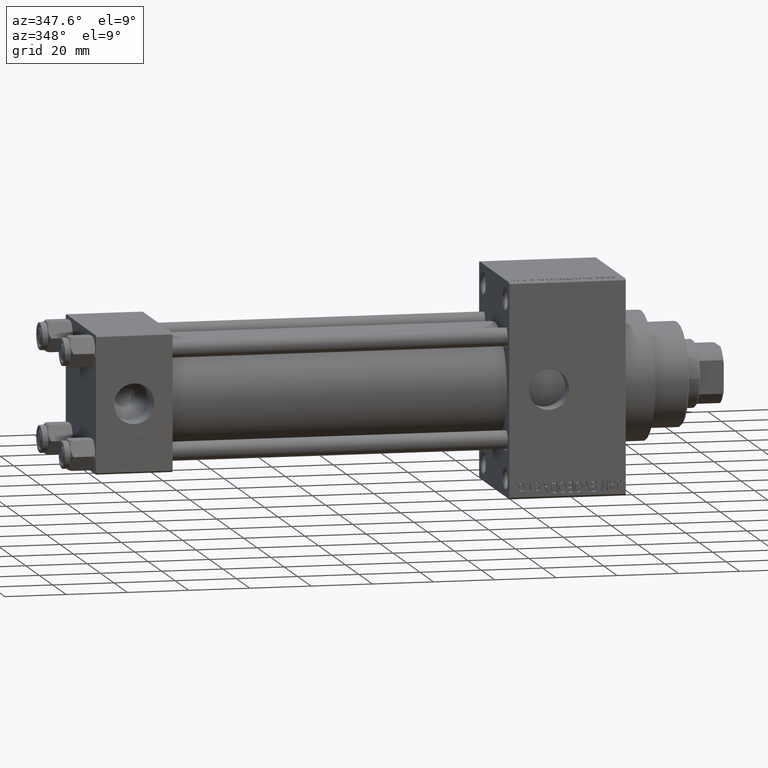
[diagram: clean part render]
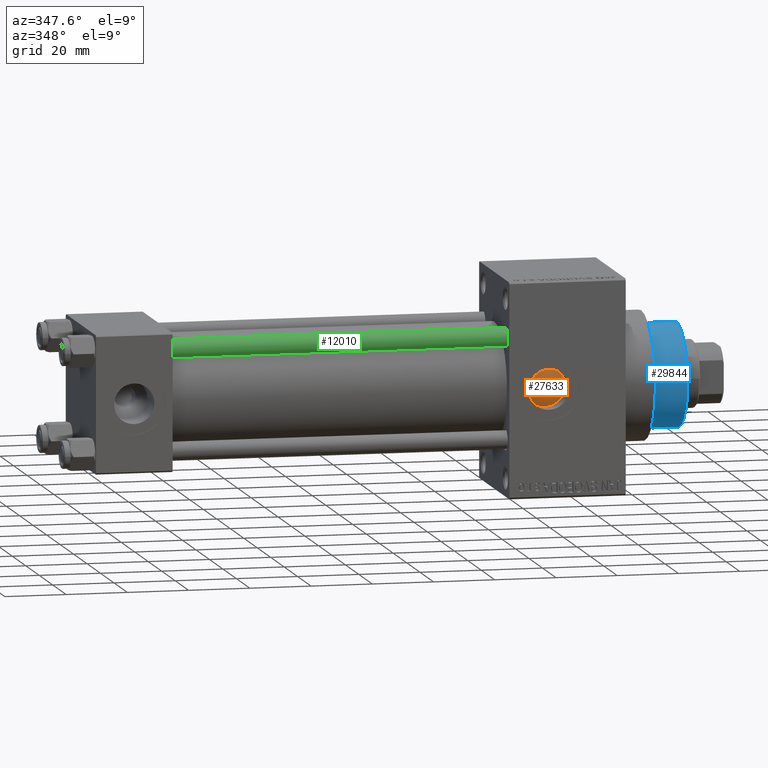
[diagram: same view with three faces highlighted in distinct colors, each labeled with its STEP entity id]
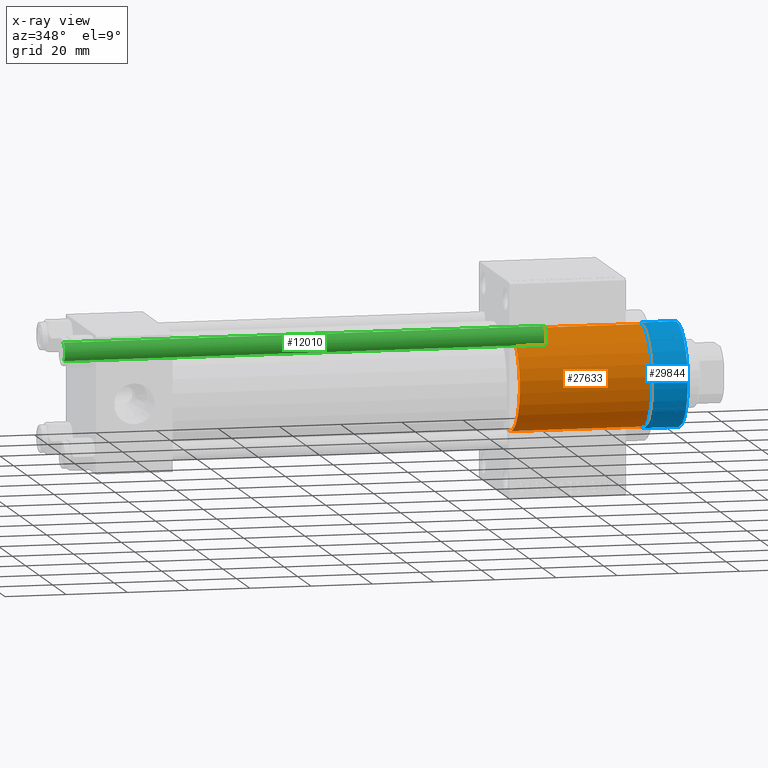
[diagram: x-ray of the same camera — body ghosted, the three highlighted faces saturated]
A machine part, auxiliary view with three faces highlighted in distinct colors.
The next image is the same camera in x-ray (body ghosted, the three faces saturated) — at least one of them is partly hidden behind the body in this view.
Their STEP definitions:

[orange] entity #27633 — the highlighted cylindrical surface (partial cylindrical patch) has radius 16.5 mm, axis along (-1, 0, 0).
#1803 = DIRECTION ( 'NONE',  ( -1.000000000000000000, 0.000000000000000000, 0.000000000000000000 ) ) ;
#4787 = ORIENTED_EDGE ( 'NONE', *, *, #31890, .F. ) ;
#5251 = AXIS2_PLACEMENT_3D ( 'NONE', #45645, #27043, #1803 ) ;
#6428 = ORIENTED_EDGE ( 'NONE', *, *, #8086, .T. ) ;
#6831 = CARTESIAN_POINT ( 'NONE',  ( 16.50000000000000000, 2.020667218593133100E-15, 43.25999999999999801 ) ) ;
#8086 = EDGE_CURVE ( 'NONE', #26972, #17601, #31611, .T. ) ;
#8954 = CYLINDRICAL_SURFACE ( 'NONE', #5251, 16.50000000000000000 ) ;
#10023 = VECTOR ( 'NONE', #35431, 1000.000000000000000 ) ;
#10830 = EDGE_CURVE ( 'NONE', #26972, #16908, #22447, .T. ) ;
#15333 = CARTESIAN_POINT ( 'NONE',  ( 16.50000000000000000, 2.020667218593133100E-15, 43.25999999999999801 ) ) ;
#15641 = AXIS2_PLACEMENT_3D ( 'NONE', #39698, #35885, #40407 ) ;
#16013 = DIRECTION ( 'NONE',  ( 0.000000000000000000, 0.000000000000000000, 1.000000000000000000 ) ) ;
#16908 = VERTEX_POINT ( 'NONE', #45381 ) ;
#17601 = VERTEX_POINT ( 'NONE', #22737 ) ;
#17792 = CARTESIAN_POINT ( 'NONE',  ( -16.50000000000000000, 0.000000000000000000, 43.25999999999999801 ) ) ;
#19307 = EDGE_CURVE ( 'NONE', #17601, #38746, #46212, .T. ) ;
#19585 = DIRECTION ( 'NONE',  ( 1.000000000000000000, 0.000000000000000000, 0.000000000000000000 ) ) ;
#22447 = CIRCLE ( 'NONE', #15641, 16.50000000000000000 ) ;
#22737 = CARTESIAN_POINT ( 'NONE',  ( 16.50000000000000000, 2.020667218593133100E-15, 0.000000000000000000 ) ) ;
#23873 = VECTOR ( 'NONE', #35881, 1000.000000000000000 ) ;
#23933 = FACE_OUTER_BOUND ( 'NONE', #41040, .T. ) ;
#26972 = VERTEX_POINT ( 'NONE', #15333 ) ;
#27043 = DIRECTION ( 'NONE',  ( -0.000000000000000000, -0.000000000000000000, -1.000000000000000000 ) ) ;
#27633 = ADVANCED_FACE ( 'NONE', ( #23933 ), #8954, .T. ) ;
#27911 = AXIS2_PLACEMENT_3D ( 'NONE', #33648, #16013, #19585 ) ;
#28509 = LINE ( 'NONE', #17792, #10023 ) ;
#31611 = LINE ( 'NONE', #6831, #23873 ) ;
#31890 = EDGE_CURVE ( 'NONE', #16908, #38746, #28509, .T. ) ;
#33648 = CARTESIAN_POINT ( 'NONE',  ( 0.000000000000000000, 0.000000000000000000, 0.000000000000000000 ) ) ;
#35431 = DIRECTION ( 'NONE',  ( -0.000000000000000000, -0.000000000000000000, -1.000000000000000000 ) ) ;
#35881 = DIRECTION ( 'NONE',  ( -0.000000000000000000, -0.000000000000000000, -1.000000000000000000 ) ) ;
#35885 = DIRECTION ( 'NONE',  ( 0.000000000000000000, 0.000000000000000000, 1.000000000000000000 ) ) ;
#38746 = VERTEX_POINT ( 'NONE', #43964 ) ;
#39566 = ORIENTED_EDGE ( 'NONE', *, *, #10830, .F. ) ;
#39698 = CARTESIAN_POINT ( 'NONE',  ( 0.000000000000000000, 0.000000000000000000, 43.25999999999999801 ) ) ;
#40407 = DIRECTION ( 'NONE',  ( 1.000000000000000000, 0.000000000000000000, 0.000000000000000000 ) ) ;
#41040 = EDGE_LOOP ( 'NONE', ( #39566, #6428, #43873, #4787 ) ) ;
#43873 = ORIENTED_EDGE ( 'NONE', *, *, #19307, .T. ) ;
#43964 = CARTESIAN_POINT ( 'NONE',  ( -16.50000000000000000, 0.000000000000000000, 0.000000000000000000 ) ) ;
#45381 = CARTESIAN_POINT ( 'NONE',  ( -16.50000000000000000, 0.000000000000000000, 43.25999999999999801 ) ) ;
#45645 = CARTESIAN_POINT ( 'NONE',  ( 0.000000000000000000, 0.000000000000000000, 43.25999999999999801 ) ) ;
#46212 = CIRCLE ( 'NONE', #27911, 16.50000000000000000 ) ;

[blue] entity #29844 — the highlighted cylindrical surface (partial cylindrical patch) has radius 17 mm, axis along (-1, 0, 0).
#1848 = CYLINDRICAL_SURFACE ( 'NONE', #34959, 17.00000000000000000 ) ;
#3148 = VECTOR ( 'NONE', #11007, 1000.000000000000000 ) ;
#4095 = CARTESIAN_POINT ( 'NONE',  ( -17.00000000000000000, 0.000000000000000000, 55.26000000000000512 ) ) ;
#5624 = LINE ( 'NONE', #38017, #26293 ) ;
#8136 = EDGE_CURVE ( 'NONE', #28402, #26431, #42164, .T. ) ;
#10809 = AXIS2_PLACEMENT_3D ( 'NONE', #31139, #24438, #35416 ) ;
#11007 = DIRECTION ( 'NONE',  ( -0.000000000000000000, -0.000000000000000000, -1.000000000000000000 ) ) ;
#12069 = CARTESIAN_POINT ( 'NONE',  ( 17.00000000000000000, 2.081899558550500280E-15, 43.25999999999999801 ) ) ;
#12103 = CARTESIAN_POINT ( 'NONE',  ( 0.000000000000000000, 0.000000000000000000, 55.26000000000000512 ) ) ;
#12350 = CARTESIAN_POINT ( 'NONE',  ( 17.00000000000000000, 2.081899558550500280E-15, 54.76000000000001222 ) ) ;
#12700 = EDGE_CURVE ( 'NONE', #26431, #32752, #5624, .T. ) ;
#13814 = CARTESIAN_POINT ( 'NONE',  ( -17.00000000000000000, 0.000000000000000000, 54.76000000000001222 ) ) ;
#16575 = DIRECTION ( 'NONE',  ( -0.000000000000000000, -0.000000000000000000, -1.000000000000000000 ) ) ;
#17814 = ORIENTED_EDGE ( 'NONE', *, *, #41263, .T. ) ;
#23738 = DIRECTION ( 'NONE',  ( -1.000000000000000000, 0.000000000000000000, 0.000000000000000000 ) ) ;
#24438 = DIRECTION ( 'NONE',  ( 0.000000000000000000, 0.000000000000000000, 1.000000000000000000 ) ) ;
#24575 = ORIENTED_EDGE ( 'NONE', *, *, #8136, .T. ) ;
#26293 = VECTOR ( 'NONE', #16575, 1000.000000000000000 ) ;
#26431 = VERTEX_POINT ( 'NONE', #12350 ) ;
#26780 = CIRCLE ( 'NONE', #10809, 17.00000000000000000 ) ;
#26855 = FACE_OUTER_BOUND ( 'NONE', #28017, .T. ) ;
#28017 = EDGE_LOOP ( 'NONE', ( #24575, #46733, #17814, #42674 ) ) ;
#28402 = VERTEX_POINT ( 'NONE', #13814 ) ;
#29330 = LINE ( 'NONE', #4095, #3148 ) ;
#29844 = ADVANCED_FACE ( 'NONE', ( #26855 ), #1848, .T. ) ;
#31139 = CARTESIAN_POINT ( 'NONE',  ( 0.000000000000000000, 0.000000000000000000, 43.25999999999999801 ) ) ;
#32752 = VERTEX_POINT ( 'NONE', #12069 ) ;
#33035 = AXIS2_PLACEMENT_3D ( 'NONE', #44234, #36351, #36838 ) ;
#34959 = AXIS2_PLACEMENT_3D ( 'NONE', #12103, #45216, #23738 ) ;
#35416 = DIRECTION ( 'NONE',  ( 1.000000000000000000, 0.000000000000000000, 0.000000000000000000 ) ) ;
#36351 = DIRECTION ( 'NONE',  ( 0.000000000000000000, 0.000000000000000000, -1.000000000000000000 ) ) ;
#36838 = DIRECTION ( 'NONE',  ( 1.000000000000000000, 0.000000000000000000, 0.000000000000000000 ) ) ;
#38017 = CARTESIAN_POINT ( 'NONE',  ( 17.00000000000000000, 2.081899558550500280E-15, 55.26000000000000512 ) ) ;
#40281 = VERTEX_POINT ( 'NONE', #44740 ) ;
#41263 = EDGE_CURVE ( 'NONE', #32752, #40281, #26780, .T. ) ;
#42164 = CIRCLE ( 'NONE', #33035, 17.00000000000000000 ) ;
#42674 = ORIENTED_EDGE ( 'NONE', *, *, #42880, .F. ) ;
#42880 = EDGE_CURVE ( 'NONE', #28402, #40281, #29330, .T. ) ;
#44234 = CARTESIAN_POINT ( 'NONE',  ( 0.000000000000000000, 0.000000000000000000, 54.76000000000001222 ) ) ;
#44740 = CARTESIAN_POINT ( 'NONE',  ( -17.00000000000000000, 0.000000000000000000, 43.25999999999999801 ) ) ;
#45216 = DIRECTION ( 'NONE',  ( -0.000000000000000000, -0.000000000000000000, -1.000000000000000000 ) ) ;
#46733 = ORIENTED_EDGE ( 'NONE', *, *, #12700, .T. ) ;

[green] entity #12010 — the highlighted cylindrical surface (edge-blend (fillet) strip) has radius 3 mm, axis along (1, 0, 0).
#341 = FACE_OUTER_BOUND ( 'NONE', #20042, .T. ) ;
#852 = AXIS2_PLACEMENT_3D ( 'NONE', #25582, #40131, #36319 ) ;
#1508 = DIRECTION ( 'NONE',  ( 1.000000000000000000, 0.000000000000000000, 0.000000000000000000 ) ) ;
#2734 = VERTEX_POINT ( 'NONE', #46377 ) ;
#3477 = AXIS2_PLACEMENT_3D ( 'NONE', #39415, #14878, #25091 ) ;
#5724 = EDGE_CURVE ( 'NONE', #32310, #2734, #37531, .T. ) ;
#6233 = EDGE_CURVE ( 'NONE', #46271, #2734, #44544, .T. ) ;
#11428 = DIRECTION ( 'NONE',  ( -0.000000000000000000, -0.000000000000000000, -1.000000000000000000 ) ) ;
#11488 = CARTESIAN_POINT ( 'NONE',  ( 3.000000000000000444, 3.673940397442060361E-16, 158.0000000000000000 ) ) ;
#12010 = ADVANCED_FACE ( 'NONE', ( #341 ), #43003, .T. ) ;
#14878 = DIRECTION ( 'NONE',  ( -0.000000000000000000, -0.000000000000000000, -1.000000000000000000 ) ) ;
#16216 = AXIS2_PLACEMENT_3D ( 'NONE', #23403, #34371, #1508 ) ;
#18511 = ORIENTED_EDGE ( 'NONE', *, *, #5724, .T. ) ;
#20042 = EDGE_LOOP ( 'NONE', ( #46515, #40303, #18511, #29601 ) ) ;
#20090 = VERTEX_POINT ( 'NONE', #39918 ) ;
#23403 = CARTESIAN_POINT ( 'NONE',  ( 0.000000000000000000, 0.000000000000000000, 0.5000000000000281997 ) ) ;
#25091 = DIRECTION ( 'NONE',  ( -1.000000000000000000, 0.000000000000000000, 0.000000000000000000 ) ) ;
#25582 = CARTESIAN_POINT ( 'NONE',  ( 0.000000000000000000, 0.000000000000000000, 157.5000000000000000 ) ) ;
#25807 = CARTESIAN_POINT ( 'NONE',  ( 3.000000000000000444, 3.673940397442060361E-16, 0.5000000000000281997 ) ) ;
#27493 = CIRCLE ( 'NONE', #852, 3.000000000000000444 ) ;
#29137 = EDGE_CURVE ( 'NONE', #20090, #32310, #40305, .T. ) ;
#29601 = ORIENTED_EDGE ( 'NONE', *, *, #6233, .F. ) ;
#32310 = VERTEX_POINT ( 'NONE', #25807 ) ;
#34371 = DIRECTION ( 'NONE',  ( -0.000000000000000000, -0.000000000000000000, 1.000000000000000000 ) ) ;
#36319 = DIRECTION ( 'NONE',  ( 1.000000000000000000, 0.000000000000000000, 0.000000000000000000 ) ) ;
#37145 = CARTESIAN_POINT ( 'NONE',  ( -3.000000000000000444, 0.000000000000000000, 158.0000000000000000 ) ) ;
#37531 = CIRCLE ( 'NONE', #16216, 3.000000000000000444 ) ;
#38698 = EDGE_CURVE ( 'NONE', #46271, #20090, #27493, .T. ) ;
#39415 = CARTESIAN_POINT ( 'NONE',  ( 0.000000000000000000, 0.000000000000000000, 158.0000000000000000 ) ) ;
#39918 = CARTESIAN_POINT ( 'NONE',  ( 3.000000000000000444, 3.673940397442060361E-16, 157.5000000000000000 ) ) ;
#40131 = DIRECTION ( 'NONE',  ( 0.000000000000000000, 0.000000000000000000, -1.000000000000000000 ) ) ;
#40303 = ORIENTED_EDGE ( 'NONE', *, *, #29137, .T. ) ;
#40304 = VECTOR ( 'NONE', #43897, 1000.000000000000000 ) ;
#40305 = LINE ( 'NONE', #11488, #40304 ) ;
#43003 = CYLINDRICAL_SURFACE ( 'NONE', #3477, 3.000000000000000444 ) ;
#43897 = DIRECTION ( 'NONE',  ( -0.000000000000000000, -0.000000000000000000, -1.000000000000000000 ) ) ;
#44544 = LINE ( 'NONE', #37145, #46655 ) ;
#45152 = CARTESIAN_POINT ( 'NONE',  ( -3.000000000000000444, 0.000000000000000000, 157.5000000000000000 ) ) ;
#46271 = VERTEX_POINT ( 'NONE', #45152 ) ;
#46377 = CARTESIAN_POINT ( 'NONE',  ( -3.000000000000000444, 0.000000000000000000, 0.5000000000000281997 ) ) ;
#46515 = ORIENTED_EDGE ( 'NONE', *, *, #38698, .T. ) ;
#46655 = VECTOR ( 'NONE', #11428, 1000.000000000000000 ) ;